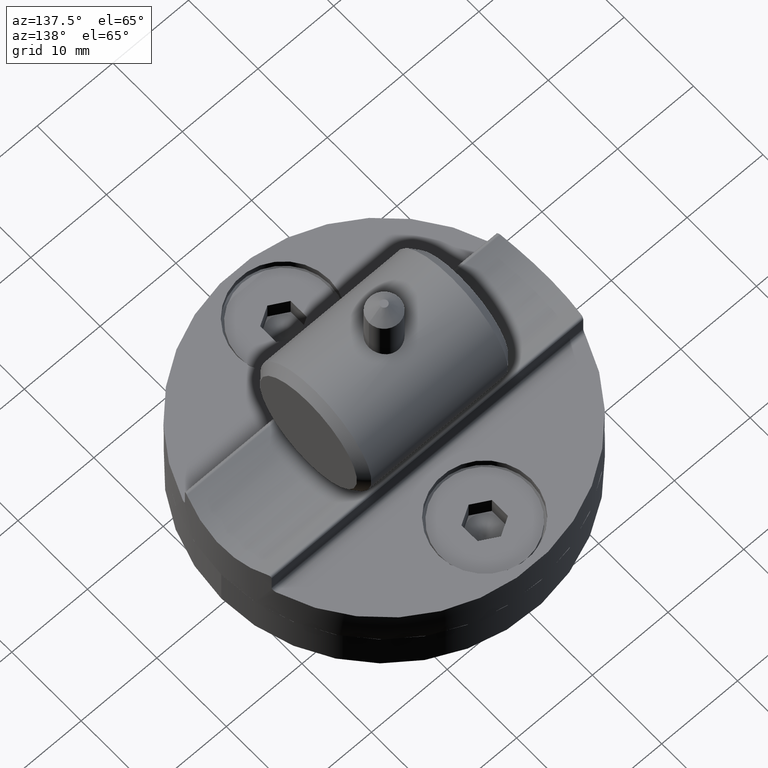
[diagram: clean part render]
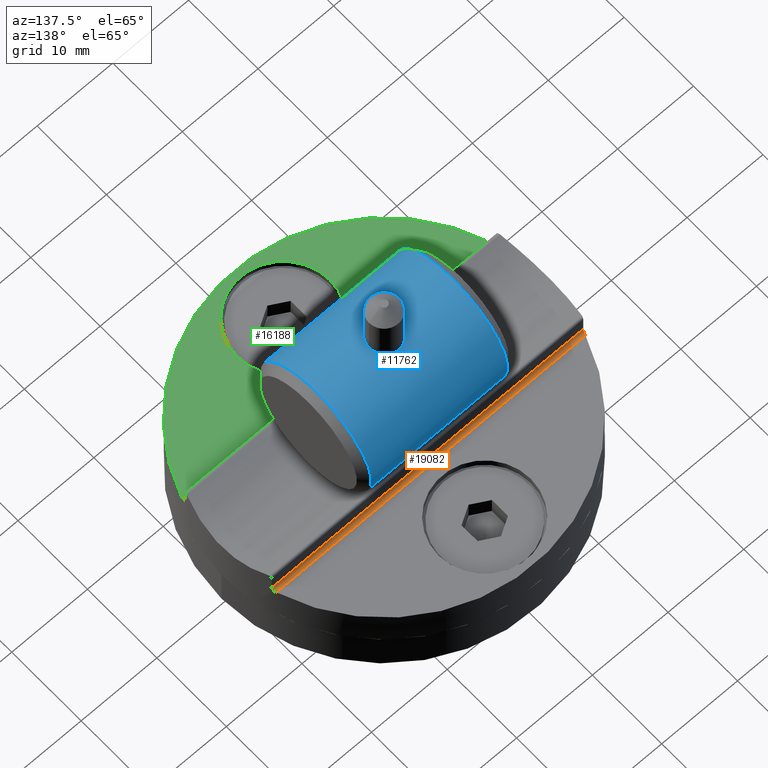
[diagram: same view with three faces highlighted in distinct colors, each labeled with its STEP entity id]
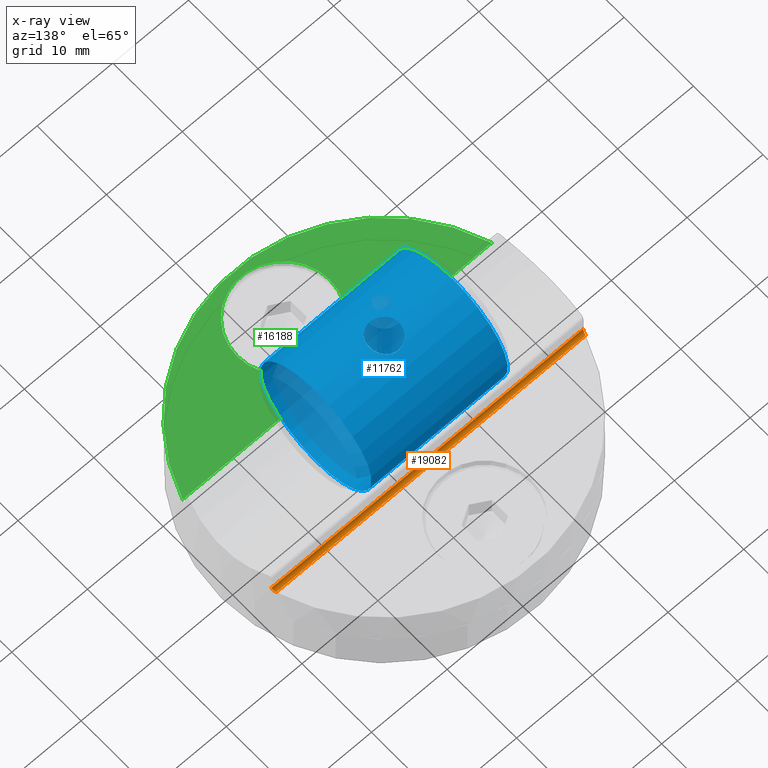
[diagram: x-ray of the same camera — body ghosted, the three highlighted faces saturated]
A machine part, auxiliary view with three faces highlighted in distinct colors.
The next image is the same camera in x-ray (body ghosted, the three faces saturated) — at least one of them is partly hidden behind the body in this view.
Their STEP definitions:

[orange] entity #19082 — the highlighted cylindrical surface (edge-blend (fillet) strip) has radius 0.5 mm, axis along (-1, 0, 0).
#401 = CARTESIAN_POINT ( 'NONE',  ( -20.45537897838723040, 6.621612830037686415, 5.000000000000000000 ) ) ;
#729 = CARTESIAN_POINT ( 'NONE',  ( 20.57152157717070651, 6.249999999999997335, 5.500000000000000000 ) ) ;
#891 = VECTOR ( 'NONE', #9358, 1000.000000000000000 ) ;
#2041 = CARTESIAN_POINT ( 'NONE',  ( -20.57152157717071006, 6.250000000000000888, 5.364602659282593500 ) ) ;
#2298 = CARTESIAN_POINT ( 'NONE',  ( 20.57152157717070651, 6.749999999999999112, 5.000000000000000000 ) ) ;
#2354 = AXIS2_PLACEMENT_3D ( 'NONE', #17787, #15909, #21415 ) ;
#3651 = FACE_OUTER_BOUND ( 'NONE', #6107, .T. ) ;
#4062 = CARTESIAN_POINT ( 'NONE',  ( -20.41292482717750900, 6.749999999999999112, 5.000000000000000000 ) ) ;
#4722 = CARTESIAN_POINT ( 'NONE',  ( 20.41292482717750900, 6.749999999999999112, 5.000000000000000000 ) ) ;
#4743 = CYLINDRICAL_SURFACE ( 'NONE', #2354, 0.5000000000000004441 ) ;
#5476 = CARTESIAN_POINT ( 'NONE',  ( -20.41292482717750900, 6.749999999999999112, 5.000000000000000000 ) ) ;
#6107 = EDGE_LOOP ( 'NONE', ( #21822, #15580, #10614, #14036 ) ) ;
#7772 = EDGE_CURVE ( 'NONE', #11403, #18995, #11340, .T. ) ;
#7819 = CARTESIAN_POINT ( 'NONE',  ( 20.45540981752867538, 6.621519568248657173, 4.999999999999999112 ) ) ;
#8677 = CARTESIAN_POINT ( 'NONE',  ( 20.57152157717070651, 6.249999999999997335, 5.500000000000000000 ) ) ;
#9358 = DIRECTION ( 'NONE',  ( 1.000000000000000000, 0.000000000000000000, -0.000000000000000000 ) ) ;
#10614 = ORIENTED_EDGE ( 'NONE', *, *, #7772, .F. ) ;
#10760 = VERTEX_POINT ( 'NONE', #20203 ) ;
#11147 = CARTESIAN_POINT ( 'NONE',  ( 20.41292482717750900, 6.749999999999999112, 5.000000000000000000 ) ) ;
#11340 = B_SPLINE_CURVE_WITH_KNOTS ( 'NONE', 3,
 ( #11147, #7819, #18305, #16689, #16535, #729 ),
 .UNSPECIFIED., .F., .F.,
 ( 4, 2, 4 ),
 ( 0.000000000000000000, 0.0004003289548585212783, 0.0008006579097170425565 ),
 .UNSPECIFIED. ) ;
#11344 = VECTOR ( 'NONE', #18188, 1000.000000000000000 ) ;
#11403 = VERTEX_POINT ( 'NONE', #4722 ) ;
#12710 = CARTESIAN_POINT ( 'NONE',  ( -20.57152157717070651, 6.249999999999997335, 5.500000000000000000 ) ) ;
#12862 = EDGE_CURVE ( 'NONE', #10760, #19175, #17002, .T. ) ;
#13436 = LINE ( 'NONE', #2298, #891 ) ;
#14036 = ORIENTED_EDGE ( 'NONE', *, *, #17339, .F. ) ;
#15530 = LINE ( 'NONE', #22084, #11344 ) ;
#15580 = ORIENTED_EDGE ( 'NONE', *, *, #22151, .F. ) ;
#15909 = DIRECTION ( 'NONE',  ( -1.000000000000000000, -0.000000000000000000, 0.000000000000000000 ) ) ;
#16512 = CARTESIAN_POINT ( 'NONE',  ( -20.49600277282623395, 6.494106603331873728, 5.051102361898786697 ) ) ;
#16535 = CARTESIAN_POINT ( 'NONE',  ( 20.57152157717092322, 6.249999999999798383, 5.364474950471099568 ) ) ;
#16689 = CARTESIAN_POINT ( 'NONE',  ( 20.55425507477874802, 6.307316803401986860, 5.233225056912150563 ) ) ;
#17002 = B_SPLINE_CURVE_WITH_KNOTS ( 'NONE', 3,
 ( #12710, #2041, #19901, #16512, #401, #4062 ),
 .UNSPECIFIED., .F., .F.,
 ( 4, 2, 4 ),
 ( 0.000000000000000000, 0.0004003249266175893783, 0.0008006498532351787566 ),
 .UNSPECIFIED. ) ;
#17339 = EDGE_CURVE ( 'NONE', #19175, #11403, #13436, .T. ) ;
#17787 = CARTESIAN_POINT ( 'NONE',  ( 0.000000000000000000, 6.749999999999999112, 5.500000000000000000 ) ) ;
#18188 = DIRECTION ( 'NONE',  ( -1.000000000000000000, -0.000000000000000000, -0.000000000000000000 ) ) ;
#18305 = CARTESIAN_POINT ( 'NONE',  ( 20.49577072966207680, 6.494846351891044200, 5.050518188725672708 ) ) ;
#18995 = VERTEX_POINT ( 'NONE', #8677 ) ;
#19082 = ADVANCED_FACE ( 'NONE', ( #3651 ), #4743, .F. ) ;
#19175 = VERTEX_POINT ( 'NONE', #5476 ) ;
#19901 = CARTESIAN_POINT ( 'NONE',  ( -20.55419081824600980, 6.307518533169027108, 5.233165460514746847 ) ) ;
#20203 = CARTESIAN_POINT ( 'NONE',  ( -20.57152157717070651, 6.249999999999997335, 5.500000000000000000 ) ) ;
#21415 = DIRECTION ( 'NONE',  ( 0.000000000000000000, 0.000000000000000000, 1.000000000000000000 ) ) ;
#21822 = ORIENTED_EDGE ( 'NONE', *, *, #12862, .F. ) ;
#22084 = CARTESIAN_POINT ( 'NONE',  ( -20.57152157717070651, 6.249999999999999112, 5.500000000000000000 ) ) ;
#22151 = EDGE_CURVE ( 'NONE', #18995, #10760, #15530, .T. ) ;

[blue] entity #11762 — the highlighted cylindrical surface (bore or boss wall) has radius 8 mm, axis along (-1, -0, -0).
#507 = CARTESIAN_POINT ( 'NONE',  ( 0.8643740932484864636, 1.845188565118923263, 7.784478288491086140 ) ) ;
#584 = CARTESIAN_POINT ( 'NONE',  ( 1.883897218969953435, 0.5345286340580001072, 7.983234980255718760 ) ) ;
#667 = CARTESIAN_POINT ( 'NONE',  ( 1.894755103278962016, -0.5417548075827215426, 7.985510302025145890 ) ) ;
#679 = CARTESIAN_POINT ( 'NONE',  ( -3.645624196787042859, -0.5369661947368691290, -7.986371596171788489 ) ) ;
#734 = CARTESIAN_POINT ( 'NONE',  ( 1.545894461140529419, -1.255308460517131408, 7.901695826164047531 ) ) ;
#744 = CARTESIAN_POINT ( 'NONE',  ( -1.847365711495414065, -3.504135914913272032, -7.191830719375270853 ) ) ;
#816 = CARTESIAN_POINT ( 'NONE',  ( -0.3816785829082892101, -2.013995997045897379, 7.742339447730453017 ) ) ;
#826 = CARTESIAN_POINT ( 'NONE',  ( -1.310086188365980675, -3.789945193433746695, -7.045548826222558070 ) ) ;
#898 = CARTESIAN_POINT ( 'NONE',  ( 1.285392361542559092, -1.548265423354442172, 7.849345734040038103 ) ) ;
#909 = CARTESIAN_POINT ( 'NONE',  ( 0.2376860033701929942, -4.055259087832399523, -6.896004211288919272 ) ) ;
#974 = CARTESIAN_POINT ( 'NONE',  ( 0.8643829426245875913, -1.845226180905987334, 7.784471109890728435 ) ) ;
#1043 = CARTESIAN_POINT ( 'NONE',  ( -0.001340135349463256187, -2.053863754605739889, 7.731859005279184238 ) ) ;
#1058 = CARTESIAN_POINT ( 'NONE',  ( 3.385852499600205068, 1.563864893807126233, -7.845656543203864963 ) ) ;
#1131 = DIRECTION ( 'NONE',  ( -1.000000000000000000, 0.000000000000000000, 0.000000000000000000 ) ) ;
#1138 = CARTESIAN_POINT ( 'NONE',  ( 1.522392175994204955, -3.691724261380000094, -7.097495339507709389 ) ) ;
#1154 = DIRECTION ( 'NONE',  ( 0.000000000000000000, 0.000000000000000000, -1.000000000000000000 ) ) ;
#1215 = CARTESIAN_POINT ( 'NONE',  ( 3.669178111636699047, -0.2822873207229169568, -7.999662532756491196 ) ) ;
#1287 = CARTESIAN_POINT ( 'NONE',  ( 2.908818733517091193, -2.485964266758538432, -7.607311719856890697 ) ) ;
#1357 = CARTESIAN_POINT ( 'NONE',  ( 2.417835207330599090, -3.053050881666902416, -7.395057748237623407 ) ) ;
#1430 = CARTESIAN_POINT ( 'NONE',  ( -0.3595385008867846843, 4.035247257662211595, -6.907733316329576212 ) ) ;
#1508 = CARTESIAN_POINT ( 'NONE',  ( -3.572336188184861427, 0.9379491213652588755, -7.945936473614110263 ) ) ;
#1662 = CARTESIAN_POINT ( 'NONE',  ( -3.471790744516672689, 1.320607031767743855, -7.891301106774830210 ) ) ;
#1867 = VERTEX_POINT ( 'NONE', #17165 ) ;
#2020 = DIRECTION ( 'NONE',  ( 0.000000000000000000, 0.000000000000000000, 1.000000000000000000 ) ) ;
#2145 = CARTESIAN_POINT ( 'NONE',  ( -1.375410283090844787, 1.453389241782693020, 7.866871024230047915 ) ) ;
#2297 = CARTESIAN_POINT ( 'NONE',  ( -1.687983555932946134, 1.031627607992695150, 7.934000954285709284 ) ) ;
#2364 = CARTESIAN_POINT ( 'NONE',  ( -0.9762752197295196943, 1.781993861368053711, 7.799383926104223264 ) ) ;
#2443 = CARTESIAN_POINT ( 'NONE',  ( -1.082486859640895416, 1.707003843799636433, 7.815762143083250457 ) ) ;
#2456 = CARTESIAN_POINT ( 'NONE',  ( -3.597451323877891127, -0.8010824921477059934, -7.959790627948352792 ) ) ;
#2536 = CARTESIAN_POINT ( 'NONE',  ( -1.584725823205570094, -3.657206615202302835, -7.115113475814741406 ) ) ;
#2607 = CARTESIAN_POINT ( 'NONE',  ( 1.465869209676056384, -1.358048372749907085, 7.884482157435500405 ) ) ;
#2684 = CARTESIAN_POINT ( 'NONE',  ( 1.080950698629574935, -1.708087212707163571, 7.815525450907717442 ) ) ;
#2696 = CARTESIAN_POINT ( 'NONE',  ( 0.7191869320092112439, -3.976127862631204657, -6.941931087241345999 ) ) ;
#2773 = CARTESIAN_POINT ( 'NONE',  ( 3.644094454049988663, -0.5487906774698020351, -7.985513887328724358 ) ) ;
#2831 = B_SPLINE_CURVE_WITH_KNOTS ( 'NONE', 3,
 ( #14751, #5716, #18166, #13042, #16620, #2297, #11393, #13123, #12809, #2145, #14830, #11154, #2443, #2364, #20004, #20161, #7590, #22064, #16466, #4093, #14611, #7509, #16540, #5879, #12961, #21736, #9441, #11075, #507, #21894, #9289, #19926, #12890, #5793, #11234, #18309, #18241, #7663, #584, #4173, #18391, #7737, #9524, #11303, #667, #14905, #4265, #6030, #18467, #734, #2607, #16851, #898, #11625, #2684, #16929, #974, #22374, #4629, #13443, #16783, #22217, #20396, #1043, #18541, #15287, #816, #15212, #9750, #13519, #7900, #18836, #8128, #15059, #11476, #17085, #6109, #20316, #6196, #9667, #2836, #6414 ),
 .UNSPECIFIED., .T., .F.,
 ( 4, 3, 3, 3, 3, 3, 3, 3, 3, 3, 3, 3, 3, 3, 3, 3, 3, 3, 3, 3, 3, 3, 3, 3, 3, 3, 3, 4 ),
 ( 0.000000000000000000, 0.03703703703703703498, 0.07407407407407406996, 0.1111111111111111049, 0.1481481481481481399, 0.1851851851851851749, 0.2222222222222222099, 0.2592592592592592449, 0.2962962962962962798, 0.3333333333333333148, 0.3703703703703703498, 0.4074074074074073848, 0.4444444444444444198, 0.4814814814814814548, 0.5185185185185184897, 0.5555555555555555802, 0.5925925925925925597, 0.6296296296296296502, 0.6666666666666666297, 0.7037037037037037202, 0.7407407407407406996, 0.7777777777777777901, 0.8148148148148147696, 0.8518518518518518601, 0.8888888888888888395, 0.9259259259259259300, 0.9629629629629629095, 1.000000000000000000 ),
 .UNSPECIFIED. ) ;
#2836 = CARTESIAN_POINT ( 'NONE',  ( -1.946583168288219534, -0.2691877506683038601, 8.000000000000000000 ) ) ;
#2845 = CARTESIAN_POINT ( 'NONE',  ( 3.225654634311439839, -1.933570052604534961, -7.762815652304960956 ) ) ;
#2924 = CARTESIAN_POINT ( 'NONE',  ( 0.8969067623558826252, -3.931792294804564492, -6.967137816242439108 ) ) ;
#2993 = CARTESIAN_POINT ( 'NONE',  ( 3.045651461593802178, 2.262036746075232863, -7.673538281614640688 ) ) ;
#3029 = EDGE_CURVE ( 'NONE', #1867, #1867, #9439, .T. ) ;
#3074 = CARTESIAN_POINT ( 'NONE',  ( 2.423625873145307086, 3.047472277524460704, -7.397367717687433952 ) ) ;
#3154 = CARTESIAN_POINT ( 'NONE',  ( -2.045270839205021396, 3.366633778249210618, -7.257119056702284965 ) ) ;
#3229 = CARTESIAN_POINT ( 'NONE',  ( -3.109937541388037907, 2.156610798739195811, -7.704669151021645845 ) ) ;
#3305 = CARTESIAN_POINT ( 'NONE',  ( -2.592429789630390946, 2.869903471326969768, -7.467506549395548809 ) ) ;
#3387 = CARTESIAN_POINT ( 'NONE',  ( -1.524875088020225089, 3.690502540456052305, -7.098134096636806945 ) ) ;
#3894 = DIRECTION ( 'NONE',  ( -1.000000000000000000, -0.000000000000000000, -0.000000000000000000 ) ) ;
#4093 = CARTESIAN_POINT ( 'NONE',  ( -0.2552237979202703899, 2.040655591841534999, 7.735404262515260143 ) ) ;
#4163 = CYLINDRICAL_SURFACE ( 'NONE', #7986, 8.000000000000000000 ) ;
#4173 = CARTESIAN_POINT ( 'NONE',  ( 1.909041435894974770, 0.4014238261086560122, 7.989922334530685788 ) ) ;
#4186 = CARTESIAN_POINT ( 'NONE',  ( -2.906953857517899031, -2.478253717780064314, -7.607205395468529474 ) ) ;
#4265 = CARTESIAN_POINT ( 'NONE',  ( 1.748284310074831760, -0.9130488632696088791, 7.948698637959817681 ) ) ;
#4423 = CARTESIAN_POINT ( 'NONE',  ( -3.172716748286692034, -2.041994855287249333, -7.735930899333692601 ) ) ;
#4499 = CARTESIAN_POINT ( 'NONE',  ( -2.977746327958502359, -2.373448883510084872, -7.640649955938664917 ) ) ;
#4579 = CARTESIAN_POINT ( 'NONE',  ( 1.630968485169695503, -3.634673454497082457, -7.126988880611620836 ) ) ;
#4629 = CARTESIAN_POINT ( 'NONE',  ( 0.6274482587269512024, -1.948953649975274871, 7.759151357569482599 ) ) ;
#4638 = CARTESIAN_POINT ( 'NONE',  ( 3.475226009785652881, -1.330076496093030691, -7.892684976955499643 ) ) ;
#4716 = CARTESIAN_POINT ( 'NONE',  ( 1.735719909074751488, -3.572543893189756847, -7.157997634201382020 ) ) ;
#4794 = CARTESIAN_POINT ( 'NONE',  ( 2.510736864699763871, 2.960136429756471621, -7.432860542937713255 ) ) ;
#4870 = CARTESIAN_POINT ( 'NONE',  ( 1.357936881053224631, -3.767514927730831076, -7.057382538762101198 ) ) ;
#4936 = CARTESIAN_POINT ( 'NONE',  ( -2.676328148690278130, 2.777385396131483386, -7.503062988939014133 ) ) ;
#5017 = CARTESIAN_POINT ( 'NONE',  ( 1.198880400023148773, 3.834600335476027855, -7.021244209110694356 ) ) ;
#5089 = CARTESIAN_POINT ( 'NONE',  ( 0.7939933113237298556, 3.959292406710936962, -6.951564416495557452 ) ) ;
#5162 = CARTESIAN_POINT ( 'NONE',  ( -3.043526159505961726, 2.265526242605217178, -7.672508771195187371 ) ) ;
#5430 = CARTESIAN_POINT ( 'NONE',  ( 10.00000000000000000, 0.000000000000000000, 0.000000000000000000 ) ) ;
#5680 = CIRCLE ( 'NONE', #6044, 8.000000000000000000 ) ;
#5716 = CARTESIAN_POINT ( 'NONE',  ( -1.946583114578298801, 0.2715389999143193456, 8.000000000000000000 ) ) ;
#5793 = CARTESIAN_POINT ( 'NONE',  ( 1.376370266079021576, 1.452377163311114217, 7.867057936451997691 ) ) ;
#5879 = CARTESIAN_POINT ( 'NONE',  ( 0.2565518453658937603, 2.040397391408355077, 7.735471736297991008 ) ) ;
#5968 = CARTESIAN_POINT ( 'NONE',  ( -1.638517801768841986, -3.628751595441459532, -7.129739509097105632 ) ) ;
#6030 = CARTESIAN_POINT ( 'NONE',  ( 1.687140233304249337, -1.033150174041868263, 7.933800916215473009 ) ) ;
#6044 = AXIS2_PLACEMENT_3D ( 'NONE', #22451, #1131, #6499 ) ;
#6109 = CARTESIAN_POINT ( 'NONE',  ( -1.689195910000956369, -1.029475745251687835, 7.934286274594061439 ) ) ;
#6120 = CARTESIAN_POINT ( 'NONE',  ( -1.477651717002276266, -3.712130658926517501, -7.086673879828053302 ) ) ;
#6196 = CARTESIAN_POINT ( 'NONE',  ( -1.797842712725270298, -0.7874190331193023917, 7.961153890378044551 ) ) ;
#6208 = CARTESIAN_POINT ( 'NONE',  ( -1.897821119077580221, -3.470452188064643728, -7.208048391233047525 ) ) ;
#6284 = CARTESIAN_POINT ( 'NONE',  ( 0.7786881032845888173, -3.962989899552390227, -6.949456114557146513 ) ) ;
#6314 = EDGE_CURVE ( 'NONE', #6472, #6472, #5680, .T. ) ;
#6352 = CARTESIAN_POINT ( 'NONE',  ( 3.333004904962572290, -1.698091195974550160, -7.817940370897813018 ) ) ;
#6414 = CARTESIAN_POINT ( 'NONE',  ( -1.946583141550033869, 0.000000000000000000, 8.000000000000000000 ) ) ;
#6425 = CARTESIAN_POINT ( 'NONE',  ( 2.762052680546554839, 2.682553979744562334, -7.539442836170551665 ) ) ;
#6465 = EDGE_LOOP ( 'NONE', ( #18424 ) ) ;
#6472 = VERTEX_POINT ( 'NONE', #13683 ) ;
#6499 = DIRECTION ( 'NONE',  ( 0.000000000000000000, 0.000000000000000000, -1.000000000000000000 ) ) ;
#6505 = CARTESIAN_POINT ( 'NONE',  ( 2.588796953356063302, -2.873904083975471035, -7.465967808402947270 ) ) ;
#6569 = CARTESIAN_POINT ( 'NONE',  ( 1.244039870718156138, -3.814666270863127373, -7.031950031245899346 ) ) ;
#6587 = DIRECTION ( 'NONE',  ( 1.000000000000000000, -0.000000000000000000, -0.000000000000000000 ) ) ;
#6654 = CARTESIAN_POINT ( 'NONE',  ( 3.549871593045552665, 1.062196126994407130, -7.933536189173882924 ) ) ;
#6731 = CARTESIAN_POINT ( 'NONE',  ( -3.337420571836132943, 1.691437862519283852, -7.820150997935107817 ) ) ;
#6807 = CARTESIAN_POINT ( 'NONE',  ( -1.739418109364019083, 3.570347366889825125, -7.159093495669887730 ) ) ;
#6874 = CARTESIAN_POINT ( 'NONE',  ( -3.507329516886655174, 1.193068449786355290, -7.910536497237363740 ) ) ;
#6955 = CARTESIAN_POINT ( 'NONE',  ( 1.420348291140578700, 3.738740917553231125, -7.072610292629816442 ) ) ;
#7039 = CARTESIAN_POINT ( 'NONE',  ( 1.083424692695263536, 3.874020459119976501, -6.999426082352741219 ) ) ;
#7509 = CARTESIAN_POINT ( 'NONE',  ( 0.0001875404659901214188, 2.053864231809407137, 7.731858878516469247 ) ) ;
#7537 = EDGE_LOOP ( 'NONE', ( #13933 ) ) ;
#7590 = CARTESIAN_POINT ( 'NONE',  ( -0.6285346435200244164, 1.948467213489720962, 7.759269842474100010 ) ) ;
#7663 = CARTESIAN_POINT ( 'NONE',  ( 1.846834419354072665, 0.6629148262951585213, 7.973470127187510137 ) ) ;
#7737 = CARTESIAN_POINT ( 'NONE',  ( 1.946698861600959729, 0.1324843415587741435, 8.000032227068112789 ) ) ;
#7750 = CARTESIAN_POINT ( 'NONE',  ( -0.3741401345347464269, -4.033626409379865052, -6.908679902090796965 ) ) ;
#7900 = CARTESIAN_POINT ( 'NONE',  ( -0.9822874553869684888, -1.793256472818496317, 7.797142608168394773 ) ) ;
#7911 = CARTESIAN_POINT ( 'NONE',  ( -1.421796540790177810, -3.738068837095593899, -7.072965528626221854 ) ) ;
#7982 = CARTESIAN_POINT ( 'NONE',  ( -0.9665762547103902147, -3.913855556015651160, -6.977374468595130885 ) ) ;
#7986 = AXIS2_PLACEMENT_3D ( 'NONE', #5430, #3894, #2020 ) ;
#8060 = CARTESIAN_POINT ( 'NONE',  ( -3.229535640345903236, -1.925644996473610648, -7.764785338150447913 ) ) ;
#8128 = CARTESIAN_POINT ( 'NONE',  ( -1.377299169782188581, -1.451396505961794592, 7.867238917338275073 ) ) ;
#8138 = CARTESIAN_POINT ( 'NONE',  ( 3.597585046471502235, 0.8003490305631200119, -7.959864410231914711 ) ) ;
#8210 = CARTESIAN_POINT ( 'NONE',  ( 2.148285600541133267, 3.290014715718374116, -7.292625278523364507 ) ) ;
#8283 = CARTESIAN_POINT ( 'NONE',  ( 3.595583559987862721, -0.8112549561258821651, -7.958760292668777048 ) ) ;
#8357 = CARTESIAN_POINT ( 'NONE',  ( 3.670071773871035337, 0.1265463665943228344, -8.000159855244080020 ) ) ;
#8434 = CARTESIAN_POINT ( 'NONE',  ( 3.281305619587031153, -1.816860345864398374, -7.791195276489070842 ) ) ;
#8506 = CARTESIAN_POINT ( 'NONE',  ( 0.004805867996901871941, 4.054750766383500071, -6.896303083719017124 ) ) ;
#8512 = CARTESIAN_POINT ( 'NONE',  ( -1.946583141550033869, 0.000000000000000000, 8.000000000000000000 ) ) ;
#8589 = CARTESIAN_POINT ( 'NONE',  ( -2.906866280406010805, 2.478381085381446525, -7.607163678935120465 ) ) ;
#8742 = CARTESIAN_POINT ( 'NONE',  ( 0.8511759504162604850, 3.944741635815043779, -6.959839848653164296 ) ) ;
#8812 = CARTESIAN_POINT ( 'NONE',  ( -0.7219479865488830361, 3.975516961943814653, -6.942280956954783200 ) ) ;
#9165 = ORIENTED_EDGE ( 'NONE', *, *, #13450, .T. ) ;
#9289 = CARTESIAN_POINT ( 'NONE',  ( 1.083289843803526553, 1.706436657316877881, 7.815885998053273553 ) ) ;
#9439 = B_SPLINE_CURVE_WITH_KNOTS ( 'NONE', 3,
 ( #9534, #18479, #679, #2456, #20406, #11406, #13453, #16706, #14842, #8060, #4423, #16942, #20326, #4499, #4186, #16630, #20249, #9605, #22153, #15068, #9680, #21994, #22074, #18622, #6208, #744, #18704, #18551, #13213, #5968, #2536, #16792, #6120, #7911, #826, #16861, #13287, #7982, #11315, #18404, #9760, #22231, #7750, #15152, #20170, #11566, #909, #13373, #2696, #6284, #9914, #2924, #17237, #15221, #22384, #15522, #20861, #6569, #10133, #4870, #18924, #1138, #4579, #4716, #20783, #13596, #17019, #17162, #11936, #10060, #1357, #11712, #6505, #22528, #1287, #11857, #13679, #10206, #2845, #12021, #8434, #15451, #6352, #20709, #22685, #4638, #22455, #8283, #2773, #1215, #19006, #8357, #22613, #13758, #15374, #18779, #8138, #6654, #20554, #1058, #15297, #17094, #2993, #13528, #6425, #18850, #4794, #3074, #17314, #19069, #8210, #20635, #9982, #11785, #21251, #21167, #15670, #6955, #15595, #5017, #7039, #12405, #19374, #15744, #8742, #5089, #22761, #13831, #10595, #8506, #17464, #12099, #1430, #10512, #10363, #8812, #13908, #23071, #19452, #3387, #15897, #6807, #19223, #17393, #3154, #22996, #12335, #3305, #4936, #19148, #20943, #8589, #17621, #5162, #3229, #17695, #17543, #21015, #6731, #22840, #12178, #1662, #6874, #10280, #1508, #22920, #13986, #19304, #14132 ),
 .UNSPECIFIED., .T., .F.,
 ( 4, 3, 3, 3, 3, 3, 3, 3, 3, 3, 3, 3, 3, 3, 3, 3, 3, 3, 3, 3, 3, 3, 3, 3, 3, 3, 3, 3, 3, 3, 3, 3, 3, 3, 3, 3, 3, 3, 3, 3, 3, 3, 3, 3, 3, 3, 3, 3, 3, 3, 3, 3, 3, 3, 3, 3, 4 ),
 ( 0.000000000000000000, 0.01785714285714285615, 0.03571428571428571230, 0.05357142857142856845, 0.07142857142857142461, 0.08928571428571428770, 0.1071428571428571369, 0.1250000000000000000, 0.1428571428571428492, 0.1607142857142857262, 0.1785714285714285754, 0.1964285714285714246, 0.2142857142857142738, 0.2321428571428571508, 0.2500000000000000000, 0.2678571428571428492, 0.2857142857142856984, 0.3035714285714285476, 0.3214285714285714524, 0.3392857142857143016, 0.3571428571428571508, 0.3750000000000000000, 0.3928571428571428492, 0.4107142857142856984, 0.4285714285714285476, 0.4464285714285714524, 0.4642857142857143016, 0.4821428571428571508, 0.5000000000000000000, 0.5178571428571429047, 0.5357142857142856984, 0.5535714285714286031, 0.5714285714285713969, 0.5892857142857143016, 0.6071428571428570953, 0.6250000000000000000, 0.6428571428571429047, 0.6607142857142856984, 0.6785714285714286031, 0.6964285714285713969, 0.7142857142857143016, 0.7321428571428570953, 0.7500000000000000000, 0.7678571428571429047, 0.7857142857142856984, 0.8035714285714286031, 0.8214285714285713969, 0.8392857142857143016, 0.8571428571428570953, 0.8750000000000000000, 0.8928571428571429047, 0.9107142857142856984, 0.9285714285714286031, 0.9464285714285713969, 0.9642857142857143016, 0.9821428571428570953, 1.000000000000000000 ),
 .UNSPECIFIED. ) ;
#9441 = CARTESIAN_POINT ( 'NONE',  ( 0.6287536116302629985, 1.948423467313718405, 7.759282766909318063 ) ) ;
#9524 = CARTESIAN_POINT ( 'NONE',  ( 1.946582280393727826, -0.001931929156414993569, 7.999999766728105755 ) ) ;
#9534 = CARTESIAN_POINT ( 'NONE',  ( -3.669784455712518767, 9.797174393178825657E-16, -8.000000000000000000 ) ) ;
#9605 = CARTESIAN_POINT ( 'NONE',  ( -2.678321487959386182, -2.775055747331233391, -7.503930477905047525 ) ) ;
#9667 = CARTESIAN_POINT ( 'NONE',  ( -1.895567740348754748, -0.5390357957013182100, 7.985720893019093047 ) ) ;
#9678 = CIRCLE ( 'NONE', #15884, 8.000000000000000000 ) ;
#9680 = CARTESIAN_POINT ( 'NONE',  ( -2.244018530228088171, -3.219018743255513293, -7.325562132266388637 ) ) ;
#9750 = CARTESIAN_POINT ( 'NONE',  ( -0.6311889517230859781, -1.947489686070177584, 7.759515727801923113 ) ) ;
#9760 = CARTESIAN_POINT ( 'NONE',  ( -0.6138222312421816040, -3.999880095039078043, -6.928341086570605434 ) ) ;
#9914 = CARTESIAN_POINT ( 'NONE',  ( 0.8379280467334786486, -3.948217136418409101, -6.957868720753880076 ) ) ;
#9982 = CARTESIAN_POINT ( 'NONE',  ( 1.950384625425711116, 3.437215552717502565, -7.224412054053835242 ) ) ;
#10060 = CARTESIAN_POINT ( 'NONE',  ( 2.327022437724358461, -3.135332009285272559, -7.360006330945046749 ) ) ;
#10133 = CARTESIAN_POINT ( 'NONE',  ( 1.300655885210920903, -3.792125655202929657, -7.044177781144772332 ) ) ;
#10146 = CARTESIAN_POINT ( 'NONE',  ( -8.999999999999992895, 0.000000000000000000, 0.000000000000000000 ) ) ;
#10206 = CARTESIAN_POINT ( 'NONE',  ( 3.168686415735832096, -2.049588952127148644, -7.733917546295391077 ) ) ;
#10280 = CARTESIAN_POINT ( 'NONE',  ( -3.542868289256637215, 1.065529867804966724, -7.929771887699896382 ) ) ;
#10363 = CARTESIAN_POINT ( 'NONE',  ( -0.6030208482625202260, 4.001881778414253965, -6.927183069714745400 ) ) ;
#10512 = CARTESIAN_POINT ( 'NONE',  ( -0.4809271077777863002, 4.022044932117815996, -6.915445636059964762 ) ) ;
#10595 = CARTESIAN_POINT ( 'NONE',  ( 0.2477308349556426315, 4.054363129245244224, -6.896530998873606322 ) ) ;
#11075 = CARTESIAN_POINT ( 'NONE',  ( 0.7465638524393747311, 1.896806016216320945, 7.771880527700202101 ) ) ;
#11154 = CARTESIAN_POINT ( 'NONE',  ( -1.188698499552271359, 1.632013826231219156, 7.832140360062278539 ) ) ;
#11234 = CARTESIAN_POINT ( 'NONE',  ( 1.556673769429611776, 1.262185564164116425, 7.902170164871571423 ) ) ;
#11303 = CARTESIAN_POINT ( 'NONE',  ( 1.946349117979264021, -0.2707644705867932600, 7.999934846048089021 ) ) ;
#11315 = CARTESIAN_POINT ( 'NONE',  ( -0.8515850517433442013, -3.946347854131933008, -6.958971878139792011 ) ) ;
#11393 = CARTESIAN_POINT ( 'NONE',  ( -1.617397681518074171, 1.142843538910372159, 7.917948512434949571 ) ) ;
#11406 = CARTESIAN_POINT ( 'NONE',  ( -3.476935820523117560, -1.323804386970130809, -7.893629612603973555 ) ) ;
#11476 = CARTESIAN_POINT ( 'NONE',  ( -1.547808866377326398, -1.252726482884274573, 7.902113347475699712 ) ) ;
#11566 = CARTESIAN_POINT ( 'NONE',  ( -0.006459159910274583916, -4.054747962656239046, -6.896304732197895859 ) ) ;
#11625 = CARTESIAN_POINT ( 'NONE',  ( 1.186272715551925483, -1.633881727531833583, 7.831743098862019359 ) ) ;
#11679 = FACE_BOUND ( 'NONE', #7537, .T. ) ;
#11712 = CARTESIAN_POINT ( 'NONE',  ( 2.504941092155959836, -2.966118541958971733, -7.430471337724076974 ) ) ;
#11755 = VERTEX_POINT ( 'NONE', #8512 ) ;
#11762 = ADVANCED_FACE ( 'NONE', ( #16980, #11679, #21973, #23099 ), #4163, .T. ) ;
#11785 = CARTESIAN_POINT ( 'NONE',  ( 1.850706104660664320, 3.503900370131564301, -7.192196091621386955 ) ) ;
#11857 = CARTESIAN_POINT ( 'NONE',  ( 3.041429790976605485, -2.268960595232206501, -7.671493845222292052 ) ) ;
#11936 = CARTESIAN_POINT ( 'NONE',  ( 2.236209668118117389, -3.217613136903642257, -7.324954913652470090 ) ) ;
#12021 = CARTESIAN_POINT ( 'NONE',  ( 3.254138743599244155, -1.875560602843228342, -7.777264705309746340 ) ) ;
#12099 = CARTESIAN_POINT ( 'NONE',  ( -0.2381498939957830685, 4.048449583206607194, -6.900020996599188550 ) ) ;
#12178 = CARTESIAN_POINT ( 'NONE',  ( -3.430788145960891544, 1.445517023792036282, -7.869320441257723786 ) ) ;
#12335 = CARTESIAN_POINT ( 'NONE',  ( -2.424633071510616578, 3.054939621717942533, -7.396393670308617274 ) ) ;
#12341 = CARTESIAN_POINT ( 'NONE',  ( -8.999999999999992895, 0.000000000000000000, -8.000000000000000000 ) ) ;
#12405 = CARTESIAN_POINT ( 'NONE',  ( 1.025696839031320806, 3.893730520941950601, -6.988517018973764650 ) ) ;
#12809 = CARTESIAN_POINT ( 'NONE',  ( -1.465035507205361354, 1.358961720741218571, 7.884316326534761998 ) ) ;
#12890 = CARTESIAN_POINT ( 'NONE',  ( 1.286218514403726587, 1.547472962884613112, 7.849501822242210380 ) ) ;
#12961 = CARTESIAN_POINT ( 'NONE',  ( 0.3817037052808863740, 2.013990696601845265, 7.742340826520181629 ) ) ;
#13042 = CARTESIAN_POINT ( 'NONE',  ( -1.797390442503047581, 0.7885676364377454117, 7.961040201051805987 ) ) ;
#13123 = CARTESIAN_POINT ( 'NONE',  ( -1.546811807103202430, 1.254059469828049389, 7.901896070584189857 ) ) ;
#13213 = CARTESIAN_POINT ( 'NONE',  ( -1.691791998090255600, -3.598787773699767545, -7.144925813196169706 ) ) ;
#13287 = CARTESIAN_POINT ( 'NONE',  ( -1.081913284469699921, -3.874536084906268663, -6.999140670593726909 ) ) ;
#13373 = CARTESIAN_POINT ( 'NONE',  ( 0.4811822469077010056, -4.028679714946462376, -6.911830977978145718 ) ) ;
#13443 = CARTESIAN_POINT ( 'NONE',  ( 0.5049977202394115849, -1.988093315794366545, 7.749078703272100910 ) ) ;
#13450 = EDGE_CURVE ( 'NONE', #21197, #21197, #9678, .T. ) ;
#13453 = CARTESIAN_POINT ( 'NONE',  ( -3.384409899598698868, -1.567672410362467517, -7.844896634997069462 ) ) ;
#13519 = CARTESIAN_POINT ( 'NONE',  ( -0.7482217862777134076, -1.896078614986284050, 7.772058021257413074 ) ) ;
#13528 = CARTESIAN_POINT ( 'NONE',  ( 2.913539469482524957, 2.479197420357963200, -7.609522777032229790 ) ) ;
#13596 = CARTESIAN_POINT ( 'NONE',  ( 1.944318949935166962, -3.441350659965281000, -7.222430135790571804 ) ) ;
#13679 = CARTESIAN_POINT ( 'NONE',  ( 3.107735319706362631, -2.160458759469040313, -7.703584907904993173 ) ) ;
#13683 = CARTESIAN_POINT ( 'NONE',  ( 9.000000000000000000, 0.000000000000000000, -8.000000000000000000 ) ) ;
#13758 = CARTESIAN_POINT ( 'NONE',  ( 3.652019045057992130, 0.3984929480270802404, -7.990069046658651253 ) ) ;
#13815 = EDGE_CURVE ( 'NONE', #11755, #11755, #2831, .T. ) ;
#13831 = CARTESIAN_POINT ( 'NONE',  ( 0.4932666767843401634, 4.027111033364024095, -6.912762392949382217 ) ) ;
#13908 = CARTESIAN_POINT ( 'NONE',  ( -0.9598022631216087674, 3.922787329002937362, -6.972476731434858799 ) ) ;
#13933 = ORIENTED_EDGE ( 'NONE', *, *, #3029, .T. ) ;
#13986 = CARTESIAN_POINT ( 'NONE',  ( -3.645118258052973736, 0.5413598008650238880, -7.986084744975537220 ) ) ;
#14132 = CARTESIAN_POINT ( 'NONE',  ( -3.669784455712518767, 9.797174393178825657E-16, -8.000000000000000000 ) ) ;
#14611 = CARTESIAN_POINT ( 'NONE',  ( -0.1270069134817428946, 2.053841858543946852, 7.731864821673269716 ) ) ;
#14751 = CARTESIAN_POINT ( 'NONE',  ( -1.946583141550033869, 0.000000000000000000, 8.000000000000000000 ) ) ;
#14830 = CARTESIAN_POINT ( 'NONE',  ( -1.285785058976327999, 1.547816762824167691, 7.849425721925333832 ) ) ;
#14842 = CARTESIAN_POINT ( 'NONE',  ( -3.286354532405114881, -1.809295137659971742, -7.793639776967202337 ) ) ;
#14905 = CARTESIAN_POINT ( 'NONE',  ( 1.797107907809541993, -0.7892841780406464336, 7.960969192648260417 ) ) ;
#15059 = CARTESIAN_POINT ( 'NONE',  ( -1.466622301548455409, -1.357037721263595120, 7.884646804890278027 ) ) ;
#15068 = CARTESIAN_POINT ( 'NONE',  ( -2.425892280667971246, -3.053809978152942861, -7.396882633207521707 ) ) ;
#15152 = CARTESIAN_POINT ( 'NONE',  ( -0.2519697291015546292, -4.047462194633733468, -6.900601891590176784 ) ) ;
#15212 = CARTESIAN_POINT ( 'NONE',  ( -0.5070426725314781669, -1.987550027810011555, 7.749218773616208367 ) ) ;
#15221 = CARTESIAN_POINT ( 'NONE',  ( 1.015688143586713332, -3.896923885953014199, -6.986735667877417733 ) ) ;
#15287 = CARTESIAN_POINT ( 'NONE',  ( -0.2563144932851002533, -2.040441966281783426, 7.735460121844698556 ) ) ;
#15297 = CARTESIAN_POINT ( 'NONE',  ( 3.292862480675775583, 1.809656561065871250, -7.796663197968883630 ) ) ;
#15374 = CARTESIAN_POINT ( 'NONE',  ( 3.639976271208528846, 0.5332797320248821027, -7.983346753947947683 ) ) ;
#15451 = CARTESIAN_POINT ( 'NONE',  ( 3.307155262274801721, -1.757475770919474156, -7.804567823693442818 ) ) ;
#15522 = CARTESIAN_POINT ( 'NONE',  ( 1.130430307900549991, -3.858157862368715385, -7.008217246543095413 ) ) ;
#15595 = CARTESIAN_POINT ( 'NONE',  ( 1.309573677678067760, 3.790118260446817100, -7.045451073308544032 ) ) ;
#15670 = CARTESIAN_POINT ( 'NONE',  ( 1.531122904603089641, 3.687363574659644705, -7.099769511951087964 ) ) ;
#15744 = CARTESIAN_POINT ( 'NONE',  ( 0.9094387351294956900, 3.928275191307933234, -6.969121466968029033 ) ) ;
#15884 = AXIS2_PLACEMENT_3D ( 'NONE', #10146, #6587, #1154 ) ;
#15897 = CARTESIAN_POINT ( 'NONE',  ( -1.634927711969407671, 3.632492909199592113, -7.128100581066409092 ) ) ;
#16466 = CARTESIAN_POINT ( 'NONE',  ( -0.3813046853886059573, 2.014074840937237543, 7.742318937831458747 ) ) ;
#16540 = CARTESIAN_POINT ( 'NONE',  ( 0.1273819944137231375, 2.053886605074867422, 7.731852935359667889 ) ) ;
#16620 = CARTESIAN_POINT ( 'NONE',  ( -1.748345599257691729, 0.9130263213294986802, 7.948712152392252150 ) ) ;
#16630 = CARTESIAN_POINT ( 'NONE',  ( -2.831839172369054136, -2.578948817420005479, -7.572913771932699767 ) ) ;
#16706 = CARTESIAN_POINT ( 'NONE',  ( -3.338146939136489522, -1.689606422058635760, -7.820530146193616972 ) ) ;
#16783 = CARTESIAN_POINT ( 'NONE',  ( 0.3800222090698680000, -2.014344666684046548, 7.742248740760111936 ) ) ;
#16792 = CARTESIAN_POINT ( 'NONE',  ( -1.530933844642298203, -3.685661634963146138, -7.100487442532376292 ) ) ;
#16851 = CARTESIAN_POINT ( 'NONE',  ( 1.375630785609307738, -1.453156898052174739, 7.866913945737769254 ) ) ;
#16861 = CARTESIAN_POINT ( 'NONE',  ( -1.197250314229009627, -3.835216613796886165, -7.020906872592323822 ) ) ;
#16929 = CARTESIAN_POINT ( 'NONE',  ( 0.9756286817072246098, -1.782292697882493560, 7.799307802953415525 ) ) ;
#16942 = CARTESIAN_POINT ( 'NONE',  ( -3.109974936653649991, -2.156506307314906223, -7.704691551148028950 ) ) ;
#16980 = FACE_BOUND ( 'NONE', #6465, .T. ) ;
#17019 = CARTESIAN_POINT ( 'NONE',  ( 2.042295283985525511, -3.368838291563728937, -7.256095958936456647 ) ) ;
#17085 = CARTESIAN_POINT ( 'NONE',  ( -1.618502388189141383, -1.141101114067981204, 7.918199811034880575 ) ) ;
#17094 = CARTESIAN_POINT ( 'NONE',  ( 3.177763453705079399, 2.044876071792502081, -7.737553786197052474 ) ) ;
#17162 = CARTESIAN_POINT ( 'NONE',  ( 2.140271618035884504, -3.296325923162176430, -7.289761782082342378 ) ) ;
#17165 = CARTESIAN_POINT ( 'NONE',  ( -3.669784455712518767, 9.797174393178825657E-16, -8.000000000000000000 ) ) ;
#17237 = CARTESIAN_POINT ( 'NONE',  ( 0.9558854779782867128, -3.915367453190719438, -6.976406911730998139 ) ) ;
#17314 = CARTESIAN_POINT ( 'NONE',  ( 2.332365330296210182, 3.130481629067687788, -7.362070684941140364 ) ) ;
#17393 = CARTESIAN_POINT ( 'NONE',  ( -1.947527866544175978, 3.439123347504402073, -7.223490583678974453 ) ) ;
#17464 = CARTESIAN_POINT ( 'NONE',  ( -0.1166566154824685148, 4.054944584952628439, -6.896189126141722525 ) ) ;
#17543 = CARTESIAN_POINT ( 'NONE',  ( -3.227963961551151506, 1.928859453253032319, -7.763987455528017279 ) ) ;
#17621 = CARTESIAN_POINT ( 'NONE',  ( -2.977114777623885544, 2.374441686471238544, -7.640348391368728898 ) ) ;
#17695 = CARTESIAN_POINT ( 'NONE',  ( -3.170531756812251079, 2.046192390445871201, -7.734837647342636124 ) ) ;
#18166 = CARTESIAN_POINT ( 'NONE',  ( -1.895480128993759283, 0.5396502666542388749, 7.985696298370917212 ) ) ;
#18241 = CARTESIAN_POINT ( 'NONE',  ( 1.797797435281968781, 0.7875341099865954542, 7.961142507555535097 ) ) ;
#18309 = CARTESIAN_POINT ( 'NONE',  ( 1.699723467137761013, 1.036772677369469431, 7.936487268291582353 ) ) ;
#18391 = CARTESIAN_POINT ( 'NONE',  ( 1.934185652819996326, 0.2683190181593118617, 7.996609688805652816 ) ) ;
#18404 = CARTESIAN_POINT ( 'NONE',  ( -0.7327036414927629027, -3.973113974585505304, -6.943656482355198278 ) ) ;
#18424 = ORIENTED_EDGE ( 'NONE', *, *, #13815, .T. ) ;
#18467 = CARTESIAN_POINT ( 'NONE',  ( 1.616517347222389267, -1.144229317279499947, 7.917748371189760270 ) ) ;
#18479 = CARTESIAN_POINT ( 'NONE',  ( -3.669784507407116259, -0.2688186012929576485, -8.000000000000000000 ) ) ;
#18541 = CARTESIAN_POINT ( 'NONE',  ( -0.1290068057844540039, -2.053802988600075263, 7.731875146946596722 ) ) ;
#18551 = CARTESIAN_POINT ( 'NONE',  ( -1.744548412169810714, -3.567290261313080801, -7.160617305200777771 ) ) ;
#18622 = CARTESIAN_POINT ( 'NONE',  ( -1.948276526659746599, -3.436768461216015869, -7.224266063090824197 ) ) ;
#18704 = CARTESIAN_POINT ( 'NONE',  ( -1.797304826249365828, -3.535792748926394058, -7.176308797205385837 ) ) ;
#18779 = CARTESIAN_POINT ( 'NONE',  ( 3.621441773184476798, 0.6694254823474763416, -7.973028520760930604 ) ) ;
#18836 = CARTESIAN_POINT ( 'NONE',  ( -1.198652906249654926, -1.640114075358193979, 7.832423142234269164 ) ) ;
#18850 = CARTESIAN_POINT ( 'NONE',  ( 2.594508803315361156, 2.867608946419168525, -7.468387974015326058 ) ) ;
#18924 = CARTESIAN_POINT ( 'NONE',  ( 1.412755312700218147, -3.742251372280553934, -7.070753472343970003 ) ) ;
#19006 = CARTESIAN_POINT ( 'NONE',  ( 3.669773886459589907, -0.009731529178090468635, -7.999994081081551300 ) ) ;
#19069 = CARTESIAN_POINT ( 'NONE',  ( 2.241104787447112834, 3.213490980610914871, -7.326773652194846775 ) ) ;
#19148 = CARTESIAN_POINT ( 'NONE',  ( -2.756645200068215118, 2.679740226466594599, -7.538587690087779514 ) ) ;
#19223 = CARTESIAN_POINT ( 'NONE',  ( -1.843908506758630494, 3.508201824580058137, -7.190086410273366369 ) ) ;
#19304 = CARTESIAN_POINT ( 'NONE',  ( -3.669784403519289917, 0.2714115543342606185, -8.000000000000000000 ) ) ;
#19374 = CARTESIAN_POINT ( 'NONE',  ( 0.9677015198427310061, 3.911808746800822689, -6.978403085282894658 ) ) ;
#19452 = CARTESIAN_POINT ( 'NONE',  ( -1.414586672528479694, 3.741406704264520933, -7.071200454893390663 ) ) ;
#19926 = CARTESIAN_POINT ( 'NONE',  ( 1.188324804864261397, 1.632209524086487784, 7.832091953608847135 ) ) ;
#19999 = EDGE_LOOP ( 'NONE', ( #20348 ) ) ;
#20004 = CARTESIAN_POINT ( 'NONE',  ( -0.8631310236070268704, 1.845785070810308071, 7.784334939013495713 ) ) ;
#20161 = CARTESIAN_POINT ( 'NONE',  ( -0.7458328335635255879, 1.897126142150014516, 7.771802390743798306 ) ) ;
#20170 = CARTESIAN_POINT ( 'NONE',  ( -0.1285317415505083660, -4.054492400068157920, -6.896454992652383709 ) ) ;
#20249 = CARTESIAN_POINT ( 'NONE',  ( -2.756724487220208797, -2.679643917059946645, -7.538622148396870060 ) ) ;
#20316 = CARTESIAN_POINT ( 'NONE',  ( -1.748980198913528294, -0.9116106518282944826, 7.948870389057518970 ) ) ;
#20326 = CARTESIAN_POINT ( 'NONE',  ( -3.043860632306076397, -2.264977595412495326, -7.672670753543346933 ) ) ;
#20348 = ORIENTED_EDGE ( 'NONE', *, *, #6314, .T. ) ;
#20396 = CARTESIAN_POINT ( 'NONE',  ( 0.1263265350855274916, -2.053924520611404070, 7.731842863611771755 ) ) ;
#20406 = CARTESIAN_POINT ( 'NONE',  ( -3.549278450968739840, -1.065198789558542858, -7.933209659724917096 ) ) ;
#20492 = EDGE_LOOP ( 'NONE', ( #9165 ) ) ;
#20554 = CARTESIAN_POINT ( 'NONE',  ( 3.478842518524634109, 1.318073226548381216, -7.894649888438847185 ) ) ;
#20635 = CARTESIAN_POINT ( 'NONE',  ( 2.049335112983422302, 3.363615134217938341, -7.258518666288599874 ) ) ;
#20709 = CARTESIAN_POINT ( 'NONE',  ( 3.357134110601168508, -1.639077325972505994, -7.830542717233282879 ) ) ;
#20783 = CARTESIAN_POINT ( 'NONE',  ( 1.840471332979807251, -3.510414331882431682, -7.189006387791142316 ) ) ;
#20861 = CARTESIAN_POINT ( 'NONE',  ( 1.187423856225391594, -3.837206886523325533, -7.019722281347026360 ) ) ;
#20943 = CARTESIAN_POINT ( 'NONE',  ( -2.831755740237112740, 2.579060655924020562, -7.572875684511449990 ) ) ;
#21015 = CARTESIAN_POINT ( 'NONE',  ( -3.285396166290051934, 1.811526516060193881, -7.793137263713398433 ) ) ;
#21167 = CARTESIAN_POINT ( 'NONE',  ( 1.638667655285816815, 3.630514806528489569, -7.129120889963886931 ) ) ;
#21197 = VERTEX_POINT ( 'NONE', #12341 ) ;
#21251 = CARTESIAN_POINT ( 'NONE',  ( 1.744686879973240679, 3.567207588330026713, -7.160658490792636499 ) ) ;
#21736 = CARTESIAN_POINT ( 'NONE',  ( 0.5068555651958790431, 1.987584001795335675, 7.749209916742372251 ) ) ;
#21894 = CARTESIAN_POINT ( 'NONE',  ( 0.9782548827427915983, 1.780663790547267755, 7.799680042497699972 ) ) ;
#21973 = FACE_OUTER_BOUND ( 'NONE', #20492, .T. ) ;
#21994 = CARTESIAN_POINT ( 'NONE',  ( -2.047280857662808984, -3.365141971595790427, -7.257810931059337278 ) ) ;
#22064 = CARTESIAN_POINT ( 'NONE',  ( -0.5073855728569415247, 1.987494090032940086, 7.749233613147658239 ) ) ;
#22074 = CARTESIAN_POINT ( 'NONE',  ( -1.998096439521489076, -3.401672778680859377, -7.240873130757574216 ) ) ;
#22153 = CARTESIAN_POINT ( 'NONE',  ( -2.594178418862247870, -2.867973824271803363, -7.468247863005872844 ) ) ;
#22217 = CARTESIAN_POINT ( 'NONE',  ( 0.2550466979003244150, -2.040596017573726328, 7.735418778248123850 ) ) ;
#22231 = CARTESIAN_POINT ( 'NONE',  ( -0.4963105399679382246, -4.019790624125996636, -6.916757912591417146 ) ) ;
#22374 = CARTESIAN_POINT ( 'NONE',  ( 0.7459156006757693413, -1.897089915440631103, 7.771811233730105961 ) ) ;
#22384 = CARTESIAN_POINT ( 'NONE',  ( 1.073059225743631551, -3.877540874160864792, -6.997476457210256129 ) ) ;
#22451 = CARTESIAN_POINT ( 'NONE',  ( 9.000000000000000000, 0.000000000000000000, 0.000000000000000000 ) ) ;
#22455 = CARTESIAN_POINT ( 'NONE',  ( 3.547072665925736779, -1.073719234781962406, -7.932006698008829737 ) ) ;
#22528 = CARTESIAN_POINT ( 'NONE',  ( 2.756508675756270677, -2.689475168008470085, -7.536960749760687861 ) ) ;
#22613 = CARTESIAN_POINT ( 'NONE',  ( 3.664061818907455859, 0.2637061640292783782, -7.996791339369354823 ) ) ;
#22685 = CARTESIAN_POINT ( 'NONE',  ( 3.380752490438065028, -1.577277159996610889, -7.842971169177726409 ) ) ;
#22761 = CARTESIAN_POINT ( 'NONE',  ( 0.7338479844158519727, 3.972856132041554300, -6.943804011786322228 ) ) ;
#22840 = CARTESIAN_POINT ( 'NONE',  ( -3.384104358898512022, 1.568477443155660067, -7.844735719596415358 ) ) ;
#22920 = CARTESIAN_POINT ( 'NONE',  ( -3.596596878140899012, 0.8057526811985139537, -7.959319230734585027 ) ) ;
#22996 = CARTESIAN_POINT ( 'NONE',  ( -2.240756784526712675, 3.221654639738827708, -7.324376002748905101 ) ) ;
#23071 = CARTESIAN_POINT ( 'NONE',  ( -1.194009841544989348, 3.843215031881458188, -7.017333171406558101 ) ) ;
#23099 = FACE_OUTER_BOUND ( 'NONE', #19999, .T. ) ;

[green] entity #16188 — the highlighted planar face has unit normal (0, 0, 1).
#1146 = CARTESIAN_POINT ( 'NONE',  ( 3.608110681359778522E-15, -14.50000000000000000, 4.999999999999999112 ) ) ;
#1306 = AXIS2_PLACEMENT_3D ( 'NONE', #9323, #16183, #12695 ) ;
#2100 = DIRECTION ( 'NONE',  ( 1.000000000000000000, 0.000000000000000000, 0.000000000000000000 ) ) ;
#2641 = ORIENTED_EDGE ( 'NONE', *, *, #22436, .F. ) ;
#2716 = CIRCLE ( 'NONE', #17912, 6.099999999999999645 ) ;
#3675 = LINE ( 'NONE', #14080, #22033 ) ;
#4044 = CARTESIAN_POINT ( 'NONE',  ( 20.41292482717750900, -6.750000000000000888, 5.000000000000000000 ) ) ;
#5464 = EDGE_LOOP ( 'NONE', ( #2641 ) ) ;
#6353 = FACE_BOUND ( 'NONE', #5464, .T. ) ;
#8281 = CIRCLE ( 'NONE', #22923, 21.50000000000000000 ) ;
#8830 = ORIENTED_EDGE ( 'NONE', *, *, #14697, .T. ) ;
#9323 = CARTESIAN_POINT ( 'NONE',  ( 0.000000000000000000, 0.000000000000000000, 5.000000000000000000 ) ) ;
#9390 = PLANE ( 'NONE',  #1306 ) ;
#9627 = CARTESIAN_POINT ( 'NONE',  ( 0.000000000000000000, 0.000000000000000000, 5.000000000000000000 ) ) ;
#10955 = DIRECTION ( 'NONE',  ( 0.000000000000000000, 0.000000000000000000, 1.000000000000000000 ) ) ;
#12695 = DIRECTION ( 'NONE',  ( 1.000000000000000000, 0.000000000000000000, -0.000000000000000000 ) ) ;
#13847 = DIRECTION ( 'NONE',  ( -1.000000000000000000, 0.000000000000000000, -0.000000000000000000 ) ) ;
#14080 = CARTESIAN_POINT ( 'NONE',  ( -20.57152157717070651, -6.750000000000000888, 5.000000000000000000 ) ) ;
#14502 = VERTEX_POINT ( 'NONE', #22926 ) ;
#14697 = EDGE_CURVE ( 'NONE', #20287, #22225, #8281, .T. ) ;
#15603 = DIRECTION ( 'NONE',  ( -0.000000000000000000, -0.000000000000000000, 1.000000000000000000 ) ) ;
#15698 = CARTESIAN_POINT ( 'NONE',  ( -20.41292482717750900, -6.750000000000000888, 5.000000000000000000 ) ) ;
#16183 = DIRECTION ( 'NONE',  ( 0.000000000000000000, 0.000000000000000000, 1.000000000000000000 ) ) ;
#16188 = ADVANCED_FACE ( 'NONE', ( #6353, #22491 ), #9390, .T. ) ;
#17168 = DIRECTION ( 'NONE',  ( 1.000000000000000000, 0.000000000000000000, 0.000000000000000000 ) ) ;
#17195 = EDGE_CURVE ( 'NONE', #22225, #20287, #3675, .T. ) ;
#17721 = ORIENTED_EDGE ( 'NONE', *, *, #17195, .T. ) ;
#17912 = AXIS2_PLACEMENT_3D ( 'NONE', #1146, #15603, #17168 ) ;
#19970 = EDGE_LOOP ( 'NONE', ( #8830, #17721 ) ) ;
#20287 = VERTEX_POINT ( 'NONE', #15698 ) ;
#22033 = VECTOR ( 'NONE', #13847, 1000.000000000000000 ) ;
#22225 = VERTEX_POINT ( 'NONE', #4044 ) ;
#22436 = EDGE_CURVE ( 'NONE', #14502, #14502, #2716, .T. ) ;
#22491 = FACE_OUTER_BOUND ( 'NONE', #19970, .T. ) ;
#22923 = AXIS2_PLACEMENT_3D ( 'NONE', #9627, #10955, #2100 ) ;
#22926 = CARTESIAN_POINT ( 'NONE',  ( 6.100000000000003197, -14.50000000000000000, 4.999999999999999112 ) ) ;